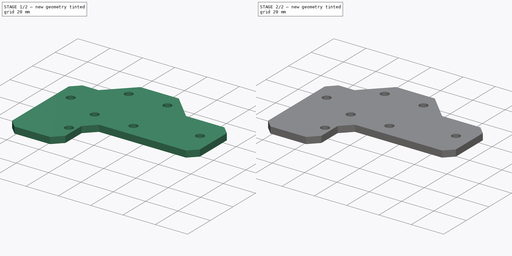
[diagram: build sequence overview — one tinted view per stage of 2, left to right]
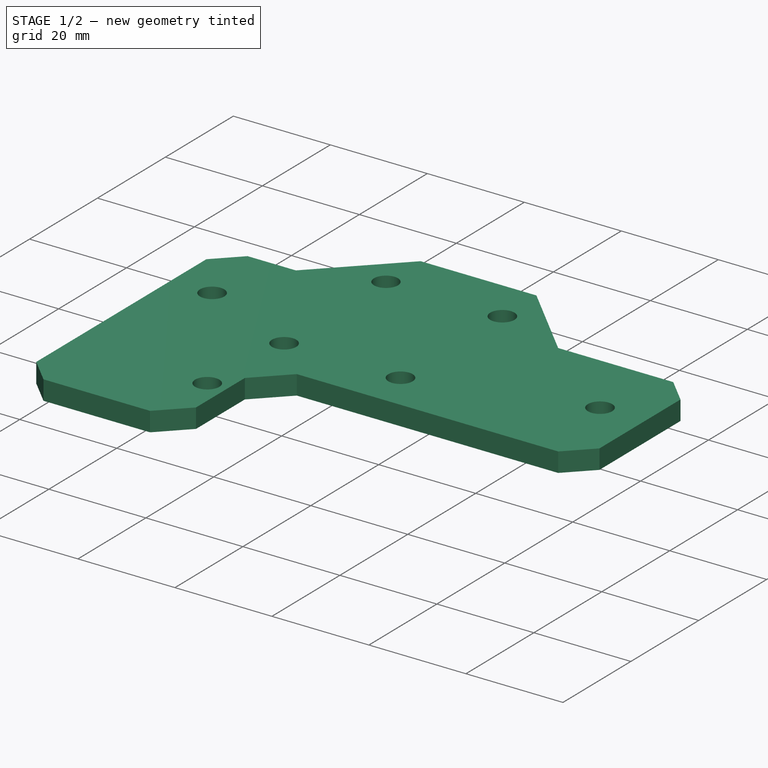
[diagram: stage 1 of 2 — iso view after this stage's code; geometry added in this stage tinted green]
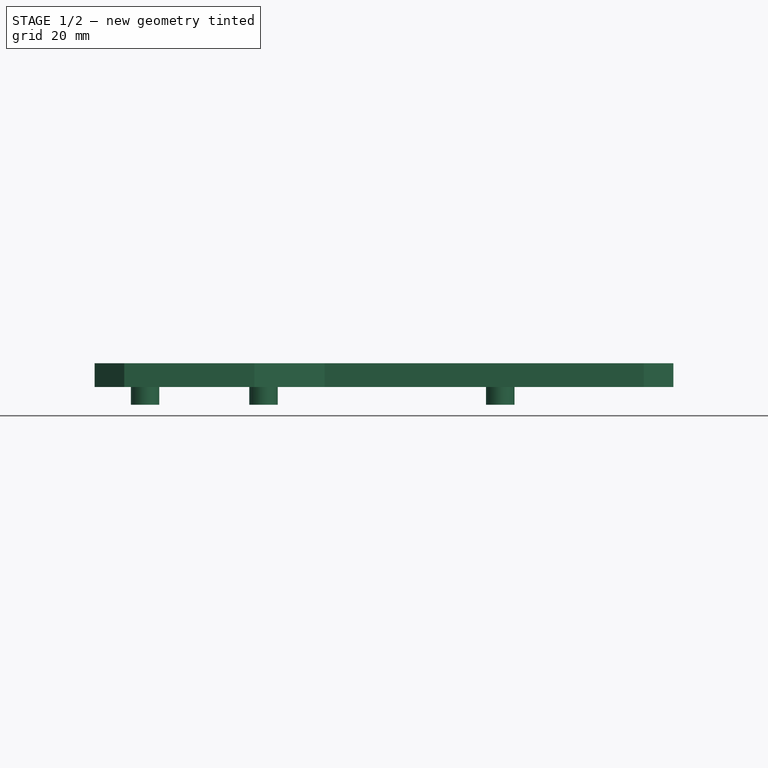
[diagram: stage 1 of 2 — front view after this stage's code; geometry added in this stage tinted green]
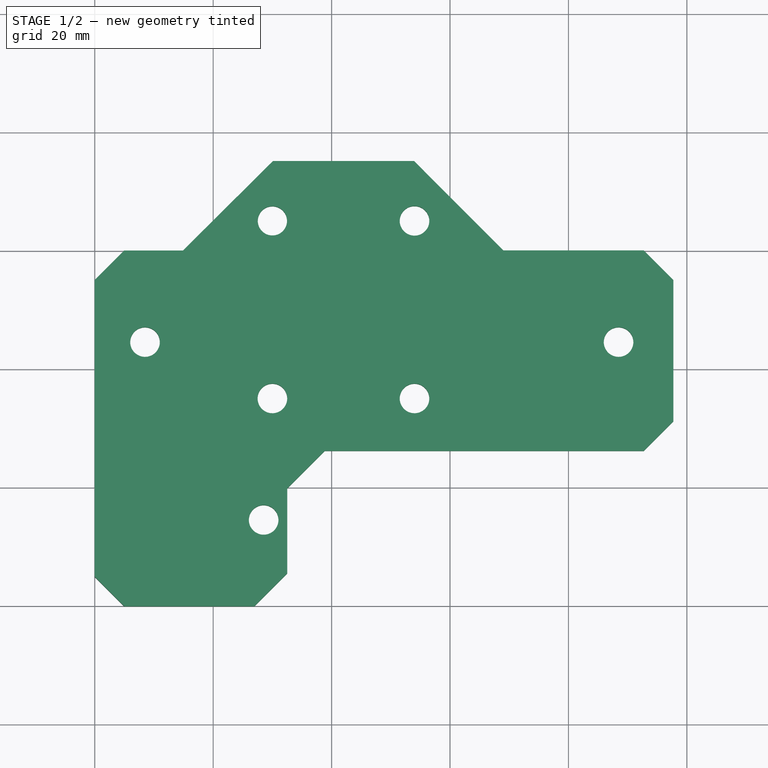
[diagram: stage 1 of 2 — top view after this stage's code; geometry added in this stage tinted green]
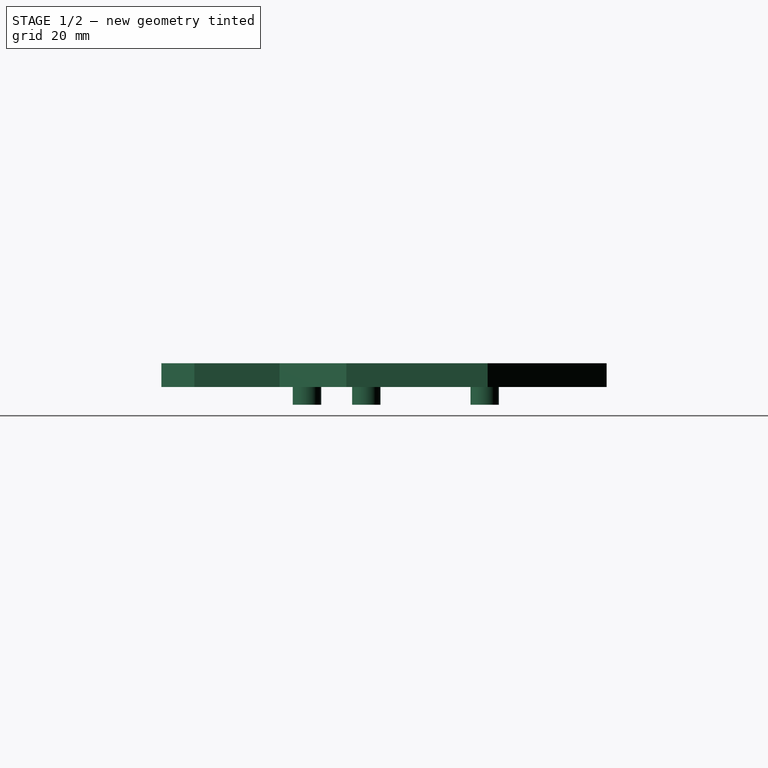
[diagram: stage 1 of 2 — right view after this stage's code; geometry added in this stage tinted green]
FCSTD DOCUMENT  (FreeCAD 0.19R24276 (Git))
Label: 80x120__1_8mm_p3
License: All rights reserved
LicenseURL: http://en.wikipedia.org/wiki/All_rights_reserved
objects: Sketcher::SketchObject×4, PartDesign::Pad×2, PartDesign::Hole×1, PartDesign::Chamfer×1, PartDesign::Body×1
note: 13 computed .brp shape members not serialized (recipe doc carries the construction recipe); baked Part::Feature solids carry a one-line shape summary decoded from their .brp

FEATURE [Sketcher::SketchObject] Sketch
  FullyConstrained = false
  MapMode = 5
  Support = -> [XY_Plane]
  sketch-geometry (46):
    g0: LineSegment StartX=0 StartY=0 StartZ=0 EndX=120 EndY=0 EndZ=0
    g1: LineSegment StartX=120 StartY=0 StartZ=0 EndX=120 EndY=80 EndZ=0
    g2: LineSegment StartX=120 StartY=80 StartZ=0 EndX=0 EndY=80 EndZ=0
    g3: LineSegment StartX=0 StartY=80 StartZ=0 EndX=0 EndY=0 EndZ=0
    g4: LineSegment StartX=0 StartY=4.5 StartZ=0 EndX=120 EndY=4.5 EndZ=0
    g5: LineSegment StartX=0 StartY=24.5 StartZ=0 EndX=120 EndY=24.5 EndZ=0
    g6: LineSegment StartX=0 StartY=44.5 StartZ=0 EndX=120 EndY=44.5 EndZ=0
    g7: LineSegment StartX=0 StartY=64.5 StartZ=0 EndX=120 EndY=64.5 EndZ=0
    g8: LineSegment StartX=48.5 StartY=0 StartZ=0 EndX=48.5 EndY=4.5 EndZ=0
    g9: LineSegment StartX=68.5 StartY=0 StartZ=0 EndX=68.5 EndY=4.5 EndZ=0
    g10: LineSegment StartX=88.5 StartY=0 StartZ=0 EndX=88.5 EndY=4.5 EndZ=0
    g11: LineSegment StartX=108.5 StartY=0 StartZ=0 EndX=108.5 EndY=4.5 EndZ=0
    g12: LineSegment StartX=0 StartY=14.5 StartZ=0 EndX=120 EndY=14.5 EndZ=0
    g13: LineSegment StartX=0 StartY=34.5 StartZ=0 EndX=120 EndY=34.5 EndZ=0
    g14: LineSegment StartX=0 StartY=54.5 StartZ=0 EndX=120 EndY=54.5 EndZ=0
    g15: LineSegment StartX=0 StartY=74.5 StartZ=0 EndX=120 EndY=74.5 EndZ=0
    g16: LineSegment StartX=48.5 StartY=24.5 StartZ=0 EndX=48.5 EndY=80 EndZ=0
    g17: LineSegment StartX=68.5 StartY=14.5 StartZ=0 EndX=68.5 EndY=80 EndZ=0
    g18: LineSegment StartX=88.5 StartY=24.5 StartZ=0 EndX=88.5 EndY=80 EndZ=0
    g19: LineSegment StartX=108.5 StartY=14.5 StartZ=0 EndX=108.5 EndY=80 EndZ=0
    g20: Circle CenterX=8.5 CenterY=4.5 CenterZ=0 NormalX=0 NormalY=0 NormalZ=1 AngleXU=0 Radius=2.5
    g21: Circle CenterX=48.5 CenterY=4.5 CenterZ=0 NormalX=0 NormalY=0 NormalZ=1 AngleXU=0 Radius=2.5
    g22: Circle CenterX=88.5 CenterY=4.5 CenterZ=0 NormalX=0 NormalY=0 NormalZ=1 AngleXU=0 Radius=2.5
    g23: Circle CenterX=28.5 CenterY=14.5 CenterZ=0 NormalX=0 NormalY=0 NormalZ=1 AngleXU=0 Radius=2.5
    g24: Circle CenterX=108.5 CenterY=14.5 CenterZ=0 NormalX=0 NormalY=0 NormalZ=1 AngleXU=0 Radius=2.5
    g25: Circle CenterX=8.5 CenterY=24.5 CenterZ=0 NormalX=0 NormalY=0 NormalZ=1 AngleXU=0 Radius=2.5
    g26: Circle CenterX=48.5 CenterY=24.5 CenterZ=0 NormalX=0 NormalY=0 NormalZ=1 AngleXU=0 Radius=2.5
    g27: Circle CenterX=88.5 CenterY=24.5 CenterZ=0 NormalX=0 NormalY=0 NormalZ=1 AngleXU=0 Radius=2.5
    g28: Circle CenterX=8.5 CenterY=44.5 CenterZ=0 NormalX=0 NormalY=0 NormalZ=1 AngleXU=0 Radius=2.5
    g29: Circle CenterX=48.5 CenterY=44.5 CenterZ=0 NormalX=0 NormalY=0 NormalZ=1 AngleXU=0 Radius=2.5
    g30: Circle CenterX=88.5 CenterY=44.5 CenterZ=0 NormalX=0 NormalY=0 NormalZ=1 AngleXU=0 Radius=2.5
    g31: Circle CenterX=28.5 CenterY=54.5 CenterZ=0 NormalX=0 NormalY=0 NormalZ=1 AngleXU=0 Radius=2.5
    g32: Circle CenterX=68.5 CenterY=54.5 CenterZ=0 NormalX=0 NormalY=0 NormalZ=1 AngleXU=0 Radius=2.5
    g33: Circle CenterX=108.5 CenterY=54.5 CenterZ=0 NormalX=0 NormalY=0 NormalZ=1 AngleXU=0 Radius=2.5
    g34: Circle CenterX=88.5 CenterY=64.5 CenterZ=0 NormalX=0 NormalY=0 NormalZ=1 AngleXU=0 Radius=2.5
    g35: Circle CenterX=48.5 CenterY=64.5 CenterZ=0 NormalX=0 NormalY=0 NormalZ=1 AngleXU=0 Radius=2.5
    g36: Circle CenterX=8.5 CenterY=64.5 CenterZ=0 NormalX=0 NormalY=0 NormalZ=1 AngleXU=0 Radius=2.5
    g37: Circle CenterX=28.5 CenterY=34.5 CenterZ=0 NormalX=0 NormalY=0 NormalZ=1 AngleXU=0 Radius=2.5
    g38: Circle CenterX=68.5 CenterY=34.5 CenterZ=0 NormalX=0 NormalY=0 NormalZ=1 AngleXU=0 Radius=2.5
    g39: Circle CenterX=108.5 CenterY=34.5 CenterZ=0 NormalX=0 NormalY=0 NormalZ=1 AngleXU=0 Radius=2.5
    g40: Circle CenterX=28.5 CenterY=74.5 CenterZ=0 NormalX=0 NormalY=0 NormalZ=1 AngleXU=0 Radius=2.5
    g41: Circle CenterX=68.5 CenterY=74.5 CenterZ=0 NormalX=0 NormalY=0 NormalZ=1 AngleXU=0 Radius=2.5
    g42: Circle CenterX=108.5 CenterY=74.5 CenterZ=0 NormalX=0 NormalY=0 NormalZ=1 AngleXU=0 Radius=2.5
    g43: LineSegment StartX=28.5 StartY=74.5 StartZ=0 EndX=28.5 EndY=14.5 EndZ=0
    g44: LineSegment StartX=8.5 StartY=4.5 StartZ=0 EndX=8.5 EndY=24.5 EndZ=0
    g45: Circle CenterX=68.5 CenterY=14.5 CenterZ=0 NormalX=0 NormalY=0 NormalZ=1 AngleXU=0 Radius=2.5
  constraints (100):
    c: Coincident(g0,g1)
    c: Coincident(g1,g2)
    c: Coincident(g2,g3)
    c: Coincident(g3,g0)
    c: Horizontal(g0)
    c: Horizontal(g2)
    c: Vertical(g1)
    c: Vertical(g3)
    c: Coincident(g0,g-1)
    c: DistanceX(g0,g0) = 120
    c: DistanceY(g3,g3) = 80
    c: Horizontal(g4)
    c: PointOnObject(g4,g3)
    c: PointOnObject(g4,g1)
    c: Horizontal(g5)
    c: PointOnObject(g5,g3)
    c: PointOnObject(g5,g1)
    c: DistanceY(g4,g5) = 20
    c: Horizontal(g6)
    c: PointOnObject(g6,g1)
    c: PointOnObject(g6,g3)
    c: DistanceY(g5,g6) = 20
    c: Horizontal(g7)
    c: PointOnObject(g7,g1)
    c: PointOnObject(g7,g3)
    c: DistanceY(g6,g7) = 20
    c: Vertical(g8)
    c: Vertical(g9)
    c: Vertical(g10)
    c: Vertical(g11)
    c: PointOnObject(g8,g0)
    c: PointOnObject(g9,g0)
    c: PointOnObject(g10,g0)
    c: PointOnObject(g11,g0)
    c: PointOnObject(g19,g2)
    c: PointOnObject(g18,g2)
    c: PointOnObject(g17,g2)
    c: PointOnObject(g16,g2)
    c: DistanceX(g8,g9) = 20
    c: DistanceX(g9,g10) = 20
    c: DistanceX(g10,g11) = 20
    c: Horizontal(g12)
    c: Horizontal(g13)
    c: Horizontal(g14)
    c: Horizontal(g15)
    c: PointOnObject(g12,g3)
    c: PointOnObject(g13,g3)
    c: PointOnObject(g14,g3)
    c: PointOnObject(g15,g3)
    c: PointOnObject(g15,g1)
    c: PointOnObject(g14,g1)
    c: PointOnObject(g13,g1)
    c: PointOnObject(g12,g1)
    c: DistanceY(g0,g12) = 14.5
    c: DistanceY(g12,g13) = 20
    c: DistanceY(g13,g14) = 20
    c: DistanceY(g14,g15) = 20
    c: PointOnObject(g20,g4)
    c: PointOnObject(g23,g12)
    c: PointOnObject(g8,g4)
    c: Tangent(g8,g16)
    c: PointOnObject(g9,g4)
    c: PointOnObject(g17,g12)
    c: Tangent(g9,g17)
    c: PointOnObject(g10,g4)
    c: Tangent(g10,g18)
    c: PointOnObject(g11,g4)
    c: PointOnObject(g19,g12)
    c: Tangent(g11,g19)
    c: Coincident(g21,g8)
    c: Coincident(g22,g10)
    c: Coincident(g24,g19)
    c: Equal(g20,g23)
    c: Equal(g23,g21)
    c: Equal(g21,g22)
    c: Equal(g22,g24)
    c: Diameter(g23) = 5
    c: PointOnObject(g16,g5)
    c: PointOnObject(g18,g5)
    c: Equal(g26,g27)
    c: Equal(g36,g31)
    c: Equal(g31,g35)
    c: Equal(g35,g34)
    c: Equal(g34,g33)
    c: Diameter(g31) = 5
    c: Equal(g34,g32)
    c: Equal(g29,g30)
    c: Diameter(g37) = 5
    c: Diameter(g40) = 5
    c: Coincident(g43,g40)
    c: Coincident(g43,g23)
    c: Vertical(g43)
    c: DistanceX(g20,g23) = 20
    c: DistanceX(g0,g20) = 8.5
    c: DistanceY(g0,g4) = 4.5
    c: Coincident(g44,g20)
    c: Coincident(g44,g25)
    c: Vertical(g44)
    c: Coincident(g45,g17)
    c: Equal(g24,g45)
FEATURE [Sketcher::SketchObject] Sketch001
  FullyConstrained = false
  MapMode = 5
  Placement = pos=(0,0,1.8) rot=(0,0,1;0rad)
  sketch-geometry (48):
    g0: LineSegment StartX=20 StartY=45 StartZ=0 EndX=69 EndY=45 EndZ=0
    g1: LineSegment StartX=69 StartY=45 StartZ=0 EndX=69 EndY=95 EndZ=0
    g2: LineSegment StartX=69 StartY=95 StartZ=0 EndX=20 EndY=95 EndZ=0
    g3: LineSegment StartX=15 StartY=90 StartZ=0 EndX=15 EndY=50 EndZ=0
    g4: LineSegment StartX=15 StartY=50 StartZ=0 EndX=20 EndY=45 EndZ=0
    g5: LineSegment StartX=15 StartY=90 StartZ=0 EndX=20 EndY=95 EndZ=0
    g6: LineSegment StartX=195.014 StartY=-98.2034 StartZ=0 EndX=244.014 EndY=-98.2034 EndZ=0
    g7: LineSegment StartX=244.014 StartY=-98.2034 StartZ=0 EndX=244.014 EndY=-48.2034 EndZ=0
    g8: LineSegment StartX=244.014 StartY=-48.2034 StartZ=0 EndX=195.014 EndY=-48.2034 EndZ=0
    g9: LineSegment StartX=190.014 StartY=-53.2034 StartZ=0 EndX=190.014 EndY=-93.2034 EndZ=0
    g10: LineSegment StartX=190.014 StartY=-93.2034 StartZ=0 EndX=195.014 EndY=-98.2034 EndZ=0
    g11: LineSegment StartX=190.014 StartY=-53.2034 StartZ=0 EndX=195.014 EndY=-48.2034 EndZ=0
    g12: LineSegment StartX=39.8661 StartY=-6.14346 StartZ=0 EndX=88.8661 EndY=-6.14346 EndZ=0
    g13: LineSegment StartX=88.8661 StartY=-6.14346 StartZ=0 EndX=88.8661 EndY=43.8565 EndZ=0
    g14: LineSegment StartX=88.8661 StartY=43.8565 StartZ=0 EndX=39.8661 EndY=43.8565 EndZ=0
    g15: LineSegment StartX=34.8661 StartY=38.8565 StartZ=0 EndX=34.8661 EndY=-1.14346 EndZ=0
    g16: LineSegment StartX=34.8661 StartY=-1.14346 StartZ=0 EndX=39.8661 EndY=-6.14346 EndZ=0
    g17: LineSegment StartX=34.8661 StartY=38.8565 StartZ=0 EndX=39.8661 EndY=43.8565 EndZ=0
    g18: LineSegment StartX=-0.02702 StartY=74.9918 StartZ=0 EndX=-0.02702 EndY=24.8891 EndZ=0
    g19: LineSegment StartX=4.97298 StartY=19.8891 StartZ=0 EndX=26.9455 EndY=19.8891 EndZ=0
    g20: LineSegment StartX=32.5182 StartY=39.8372 StartZ=0 EndX=38.817 EndY=46.1359 EndZ=0
    g21: LineSegment StartX=38.817 StartY=46.1359 StartZ=0 EndX=92.7244 EndY=46.1359 EndZ=0
    g22: LineSegment StartX=97.7244 StartY=51.1359 StartZ=0 EndX=97.7244 EndY=75 EndZ=0
    g23: LineSegment StartX=32.5182 StartY=39.8372 StartZ=0 EndX=32.5182 EndY=25.4619 EndZ=0
    g24: LineSegment StartX=32.5182 StartY=25.4619 StartZ=0 EndX=26.9455 EndY=19.8891 EndZ=0
    g25: LineSegment StartX=30 StartY=55 StartZ=0 EndX=54 EndY=55 EndZ=0
    g26: LineSegment StartX=30 StartY=85 StartZ=0 EndX=54 EndY=85 EndZ=0
    g27: LineSegment StartX=30 StartY=55 StartZ=0 EndX=30 EndY=85 EndZ=0
    g28: LineSegment StartX=54 StartY=85 StartZ=0 EndX=54 EndY=55 EndZ=0
    g29: Circle CenterX=54 CenterY=85 CenterZ=0 NormalX=0 NormalY=0 NormalZ=1 AngleXU=0 Radius=2.5
    g30: Circle CenterX=30 CenterY=85 CenterZ=0 NormalX=0 NormalY=0 NormalZ=1 AngleXU=0 Radius=2.5
    g31: Circle CenterX=30 CenterY=55 CenterZ=0 NormalX=0 NormalY=0 NormalZ=1 AngleXU=0 Radius=2.5
    g32: Circle CenterX=54 CenterY=55 CenterZ=0 NormalX=0 NormalY=0 NormalZ=1 AngleXU=0 Radius=2.5
    g33: LineSegment StartX=30 StartY=95 StartZ=0 EndX=15 EndY=80 EndZ=0
    g34: LineSegment StartX=54 StartY=95 StartZ=0 EndX=69 EndY=80 EndZ=0
    g35: Circle CenterX=8.48509 CenterY=64.5239 CenterZ=0 NormalX=0 NormalY=0 NormalZ=1 AngleXU=0 Radius=2.5
    g36: Circle CenterX=28.5215 CenterY=34.4816 CenterZ=0 NormalX=0 NormalY=0 NormalZ=1 AngleXU=0 Radius=2.5
    g37: Circle CenterX=88.4669 CenterY=64.525 CenterZ=0 NormalX=0 NormalY=0 NormalZ=1 AngleXU=0 Radius=2.5
    g38: LineSegment StartX=30.0797 StartY=95.1036 StartZ=0 EndX=53.9436 EndY=95.1036 EndZ=0
    g39: LineSegment StartX=53.9436 StartY=95.1036 StartZ=0 EndX=69 EndY=80 EndZ=0
    g40: LineSegment StartX=69 StartY=80 StartZ=0 EndX=92.7244 EndY=80 EndZ=0
    g41: LineSegment StartX=30.0797 StartY=95.1036 StartZ=0 EndX=14.9122 EndY=79.9918 EndZ=0
    g42: LineSegment StartX=14.9122 StartY=79.9918 StartZ=0 EndX=4.97298 EndY=79.9918 EndZ=0
    g43: LineSegment StartX=4.97298 StartY=79.9918 StartZ=0 EndX=-0.02702 EndY=74.9918 EndZ=0
    g44: LineSegment StartX=92.7244 StartY=80 StartZ=0 EndX=97.7244 EndY=75 EndZ=0
    g45: LineSegment StartX=-0.02702 StartY=24.8891 StartZ=0 EndX=4.97298 EndY=19.8891 EndZ=0
    g46: LineSegment StartX=97.7244 StartY=51.1359 StartZ=0 EndX=92.7244 EndY=46.1359 EndZ=0
    g47: Circle CenterX=30 CenterY=85 CenterZ=0 NormalX=0 NormalY=0 NormalZ=1 AngleXU=0 Radius=2.46865
  constraints (117):
    c: Coincident(g0,g1)
    c: Coincident(g1,g2)
    c: Horizontal(g0)
    c: Horizontal(g2)
    c: Vertical(g1)
    c: Vertical(g3)
    c: DistanceY(g1,g1) = 50
    c: Coincident(g0,g4)
    c: Coincident(g3,g4)
    c: Coincident(g3,g5)
    c: Coincident(g2,g5)
    c: DistanceY(g5,g5) = 5
    c: DistanceX(g3,g0) = 54
    c: DistanceX(g5,g5) = 5
    c: DistanceX(g3,g0) = 5
    c: DistanceY(g0,g3) = 5
    c: Coincident(g6,g7)
    c: Coincident(g7,g8)
    c: Horizontal(g6)
    c: Horizontal(g8)
    c: Vertical(g7)
    c: Vertical(g9)
    c: Equal(g1,g7) = 50
    c: Coincident(g6,g10)
    c: Coincident(g9,g10)
    c: Coincident(g9,g11)
    c: Coincident(g8,g11)
    c: Equal(g5,g11) = 5
    c: DistanceX(g9,g6) = 54
    c: DistanceX(g9,g6) = 5
    c: DistanceY(g6,g9) = 5
    c: DistanceX(g9,g8) = 5
    c: Coincident(g12,g13)
    c: Coincident(g13,g14)
    c: Horizontal(g12)
    c: Horizontal(g14)
    c: Vertical(g13)
    c: Vertical(g15)
    c: Coincident(g12,g16)
    c: Coincident(g15,g16)
    c: Coincident(g15,g17)
    c: Coincident(g14,g17)
    c: DistanceX(g15,g12) = 54
    c: DistanceX(g15,g12) = 5
    c: DistanceY(g12,g15) = 5
    c: DistanceX(g15,g14) = 5
    c: DistanceY(g13,g13) = 50
    c: DistanceY(g15,g14) = 5
    c: Vertical(g18)
    c: Horizontal(g19)
    c: Coincident(g21,g20)
    c: Horizontal(g21)
    c: Vertical(g22)
    c: Coincident(g23,g20)
    c: Vertical(g23)
    c: Coincident(g24,g23)
    c: Coincident(g19,g24)
    c: Horizontal(g25)
    c: Horizontal(g26)
    c: DistanceY(g-1,g0) = 45
    c: DistanceX(g-1,g3) = 15
    c: Vertical(g27)
    c: Coincident(g26,g28)
    c: Coincident(g27,g26)
    c: Coincident(g27,g25)
    c: Coincident(g25,g28)
    c: DistanceX(g26,g1) = 15
    c: DistanceX(g3,g26) = 15
    c: DistanceY(g0,g25) = 10
    c: DistanceY(g26,g2) = 10
    c: Vertical(g28)
    c: Coincident(g29,g26)
    c: Coincident(g30,g26)
    c: Coincident(g31,g25)
    c: Coincident(g32,g25)
    c: Equal(g29,g30)
    c: Equal(g30,g31)
    c: Equal(g31,g32)
    c: Diameter(g29) = 5
    c: PointOnObject(g33,g3)
    c: PointOnObject(g33,g2)
    c: DistanceX(g3,g33) = 15
    c: DistanceY(g33,g2) = 15
    c: PointOnObject(g34,g1)
    c: PointOnObject(g34,g2)
    c: DistanceX(g34,g1) = 15
    c: DistanceY(g34,g1) = 15
    c: Diameter(g35) = 5
    c: Diameter(g36) = 5
    c: Diameter(g37) = 5
    c: Horizontal(g38)
    c: Coincident(g39,g38)
    c: Coincident(g39,g34)
    c: Coincident(g40,g39)
    c: Horizontal(g40)
    c: Coincident(g41,g38)
    c: Coincident(g42,g41)
    c: Horizontal(g42)
    c: DistanceY(g43,g43) = 5
    c: DistanceX(g43,g43) = 5
    c: Coincident(g42,g43)
    c: Coincident(g18,g43)
    c: DistanceY(g44,g44) = 5
    c: DistanceX(g44,g44) = 5
    c: Coincident(g22,g44)
    c: Coincident(g40,g44)
    c: Coincident(g19,g45)
    c: Coincident(g18,g45)
    c: DistanceX(g18,g19) = 5
    c: DistanceY(g19,g18) = 5
    c: Coincident(g22,g46)
    c: Coincident(g21,g46)
    c: DistanceY(g21,g22) = 5
    c: DistanceX(g21,g22) = 5
    c: Angle(g20,g21) = 2.35619
    c: Angle(g24,g19) = 2.35619
    c: Coincident(g47,g26)
FEATURE [PartDesign::Pad] Pad
  Direction = (1,1,1)
  Length = 4
  Length2 = 100
  Placement = pos=(0,0,1.8) rot=(0,0,1;0rad)
  Profile = -> Sketch001
  Type = 0
FEATURE [Sketcher::SketchObject] Sketch002
  FullyConstrained = false
  MapMode = 5
  Placement = pos=(0,0,1.8) rot=(1,0,0;3.14159rad)
  Support = -> [Pad]
  sketch-geometry (3):
    g0: Circle CenterX=8.49511 CenterY=-44.49 CenterZ=0 NormalX=0 NormalY=0 NormalZ=1 AngleXU=0 Radius=2.4
    g1: Circle CenterX=28.4992 CenterY=-74.5042 CenterZ=0 NormalX=0 NormalY=0 NormalZ=1 AngleXU=0 Radius=2.4
    g2: Circle CenterX=68.4816 CenterY=-54.5123 CenterZ=0 NormalX=0 NormalY=0 NormalZ=1 AngleXU=0 Radius=2.4
  constraints (3):
    c: Diameter(g2) = 4.8
    c: Equal(g2,g1)
    c: Equal(g1,g0)
FEATURE [PartDesign::Pad] Pad001
  BaseFeature = -> Pad
  Direction = (1,1,1)
  Length = 3
  Length2 = 100
  Placement = pos=(0,0,1.8) rot=(0,0,1;0rad)
  Profile = -> Sketch002
  Type = 0
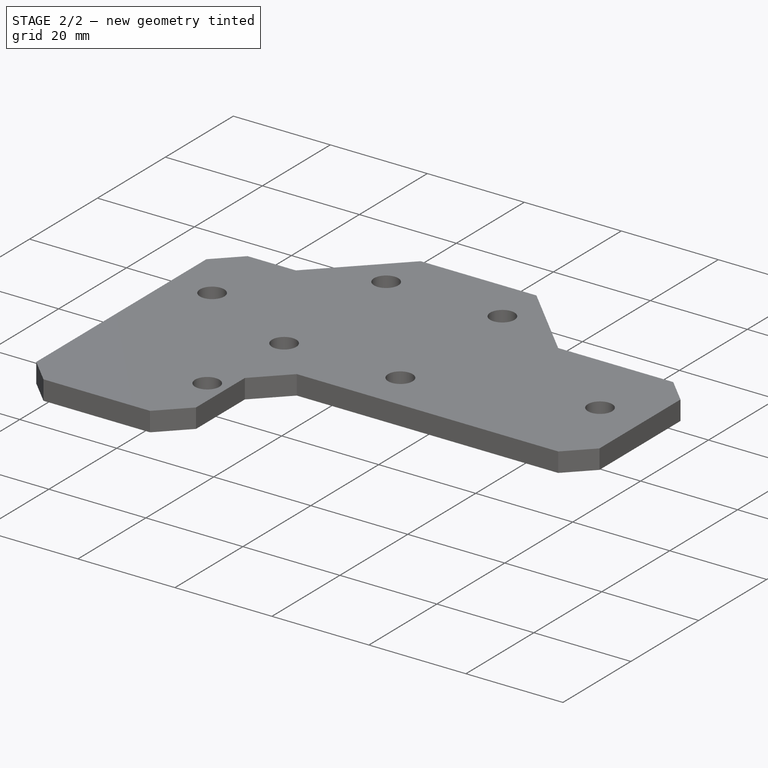
[diagram: stage 2 of 2 — iso view after this stage's code; geometry added in this stage tinted green]
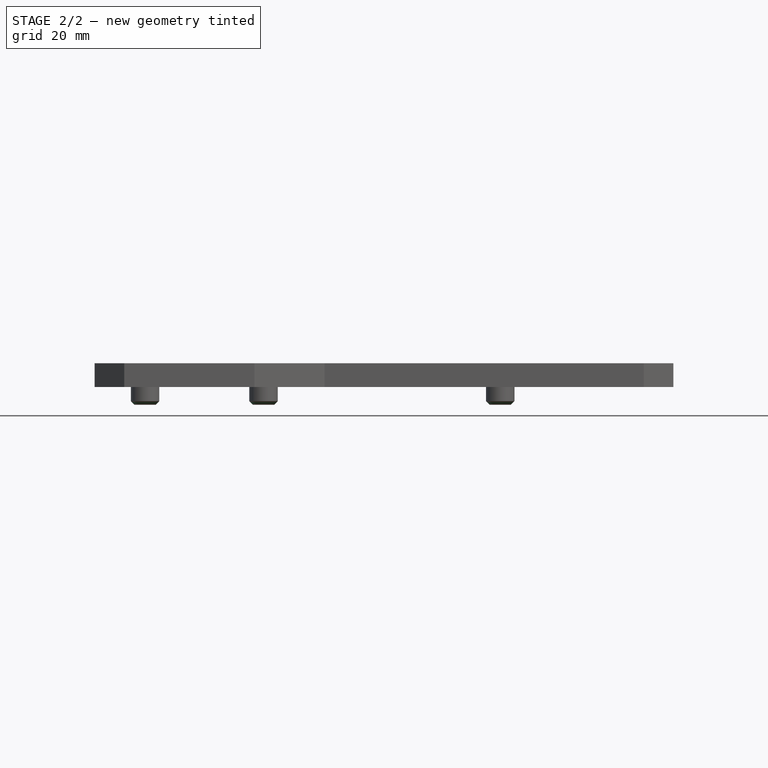
[diagram: stage 2 of 2 — front view after this stage's code; geometry added in this stage tinted green]
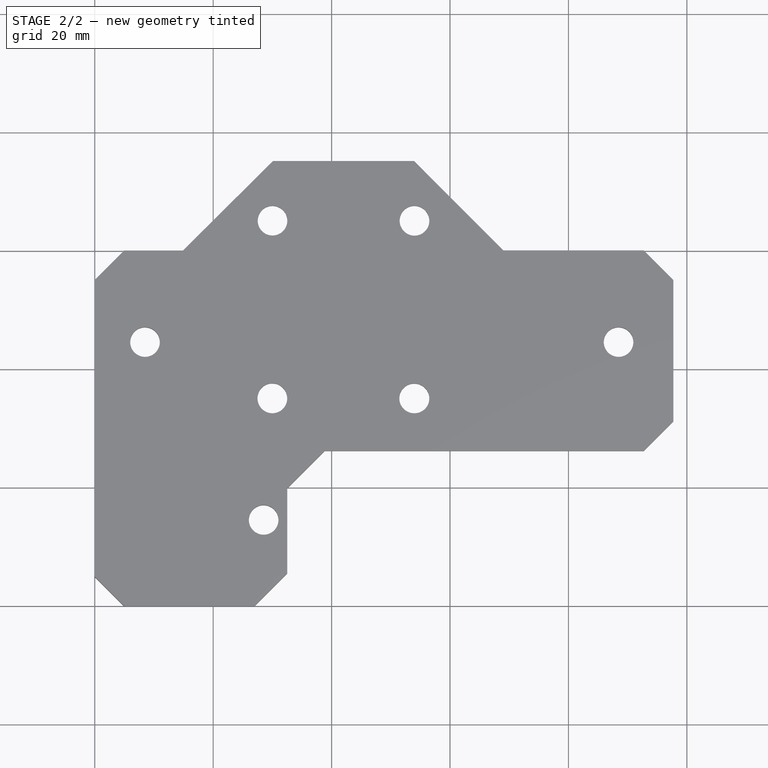
[diagram: stage 2 of 2 — top view after this stage's code; geometry added in this stage tinted green]
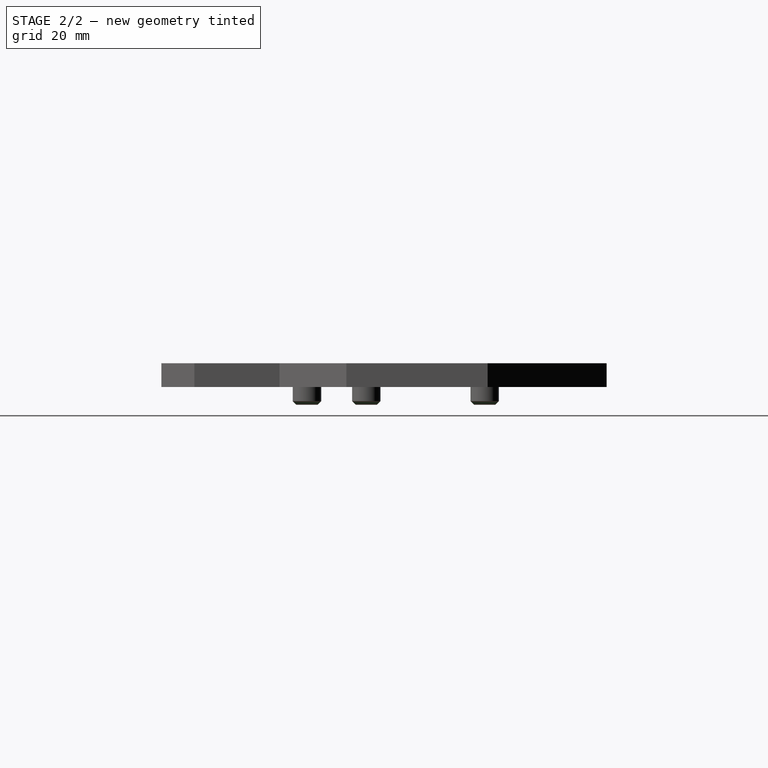
[diagram: stage 2 of 2 — right view after this stage's code; geometry added in this stage tinted green]
FEATURE [Sketcher::SketchObject] Sketch003
  FullyConstrained = false
  MapMode = 5
  Placement = pos=(0,0,1.8) rot=(1,0,0;3.14159rad)
  Support = -> [Pad001]
  sketch-geometry (4):
    g0: Circle CenterX=53.9404 CenterY=-55.0058 CenterZ=0 NormalX=0 NormalY=0 NormalZ=1 AngleXU=0 Radius=2
    g1: Circle CenterX=29.9831 CenterY=-55.0362 CenterZ=0 NormalX=0 NormalY=0 NormalZ=1 AngleXU=0 Radius=2
    g2: Circle CenterX=30.0177 CenterY=-85.0255 CenterZ=0 NormalX=0 NormalY=0 NormalZ=1 AngleXU=0 Radius=1.86106
    g3: Circle CenterX=53.9886 CenterY=-85.0255 CenterZ=0 NormalX=0 NormalY=0 NormalZ=1 AngleXU=0 Radius=2.00381
  constraints (2):
    c: Diameter(g0) = 4
    c: Diameter(g1) = 4
FEATURE [PartDesign::Hole] Hole
  BaseFeature = -> Pad001
  Depth = 25
  DepthType = 0
  Diameter = 5
  DrillForDepth = false
  DrillPoint = 1
  DrillPointAngle = 118
  HoleCutCountersinkAngle = 90
  HoleCutCustomValues = false
  HoleCutDepth = 2.5
  HoleCutDiameter = 7.5
  HoleCutType = 2
  ModelActualThread = false
  Placement = pos=(0,0,1.8) rot=(0,0,1;0rad)
  Profile = -> Sketch003
  Tapered = false
  TaperedAngle = 90
  ThreadAngle = 0
  ThreadClass = 0
  ThreadCutOffInner = 0
  ThreadCutOffOuter = 0
  ThreadDirection = 0
  ThreadFit = 0
  ThreadPitch = 0
  ThreadSize = 0
  ThreadType = 0
  Threaded = false
FEATURE [PartDesign::Chamfer] Chamfer
  Angle = 45
  Base = -> Hole [Edge97,Edge95,Edge76]
  BaseFeature = -> Hole
  ChamferType = 0
  FlipDirection = false
  Placement = pos=(0,0,1.8) rot=(0,0,1;0rad)
  Size = 0.6
  Size2 = 1
  SupportTransform = false
FEATURE [PartDesign::Body] Body
  Group = -> [Sketch,Sketch001,Pad,Sketch002,Pad001,Sketch003,Hole,Chamfer]
  Origin = -> Origin
  Tip = -> Chamfer
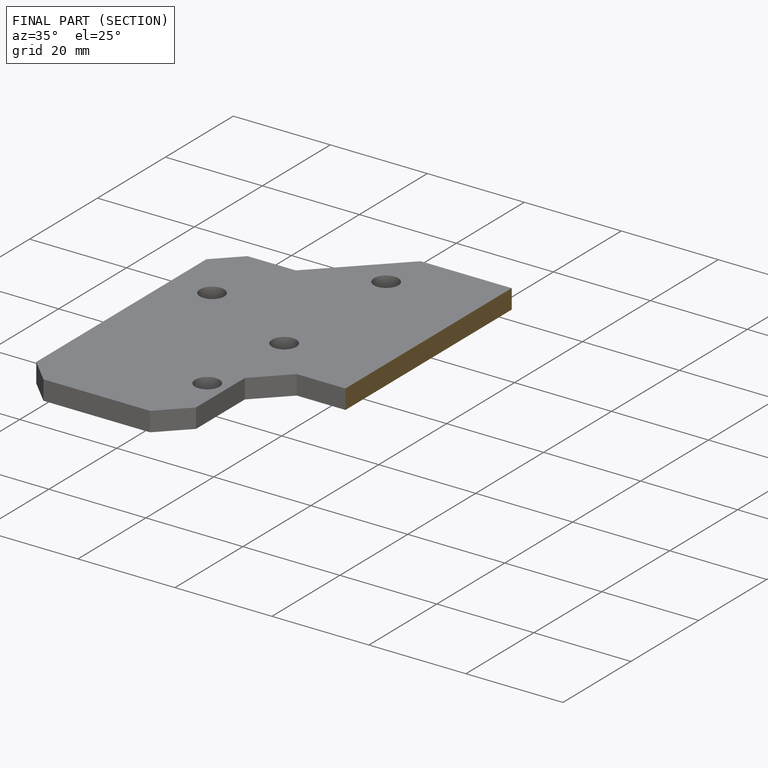
[diagram: finished part — half-section view (interior)]
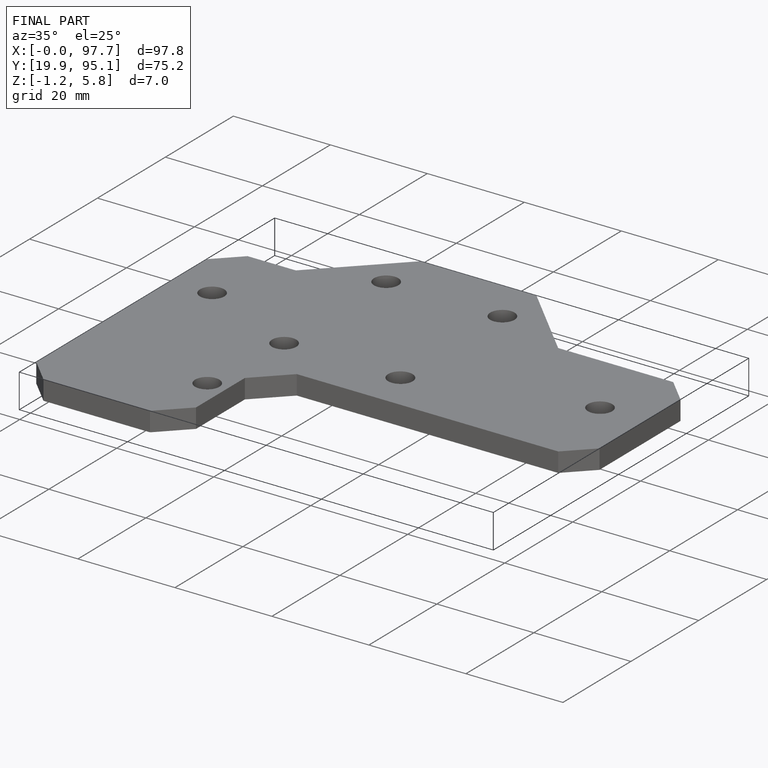
[diagram: finished part — iso view with bounding-box wireframe]
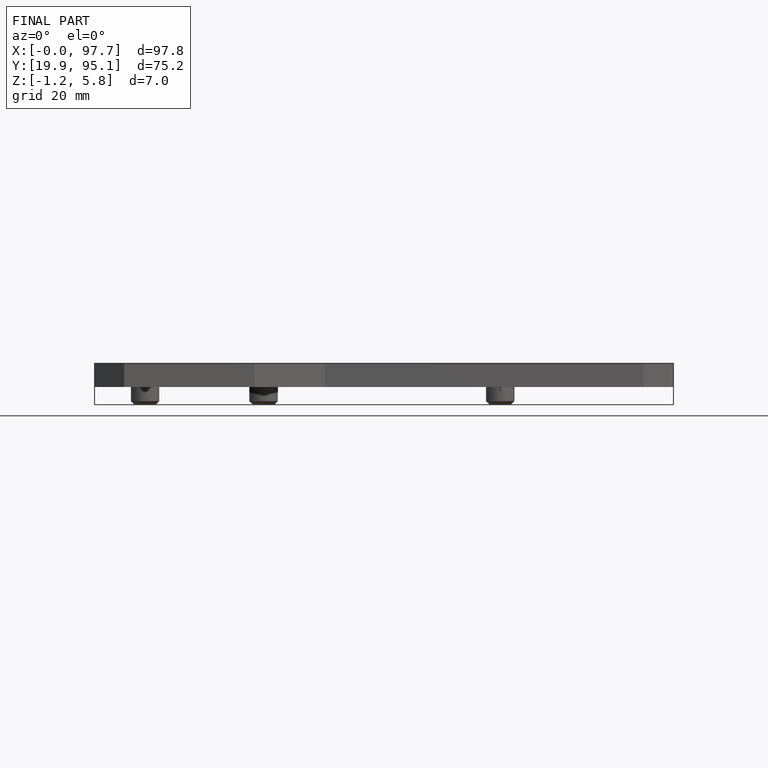
[diagram: finished part — front view with bounding-box wireframe]
